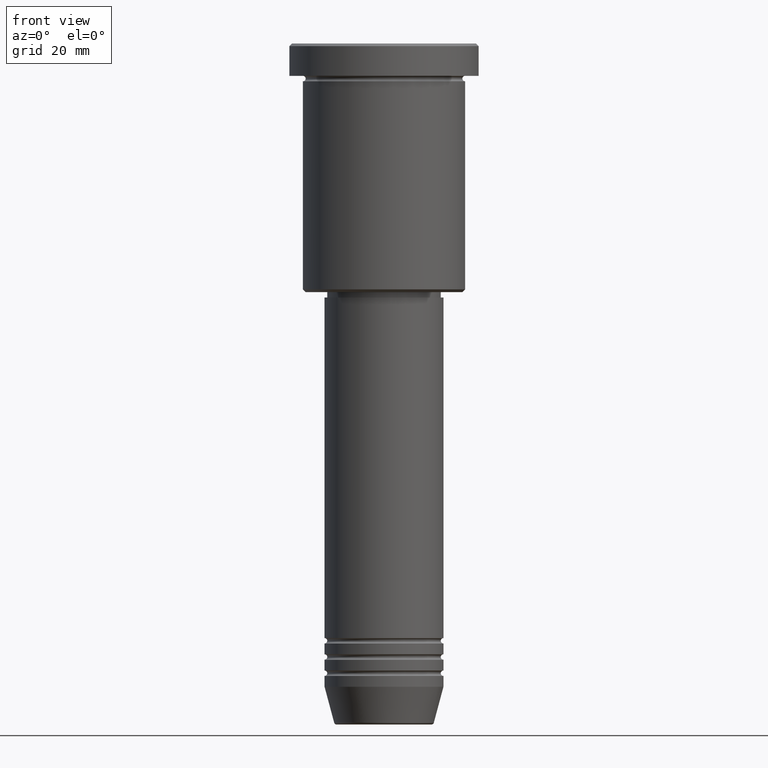
[diagram: clean part render]
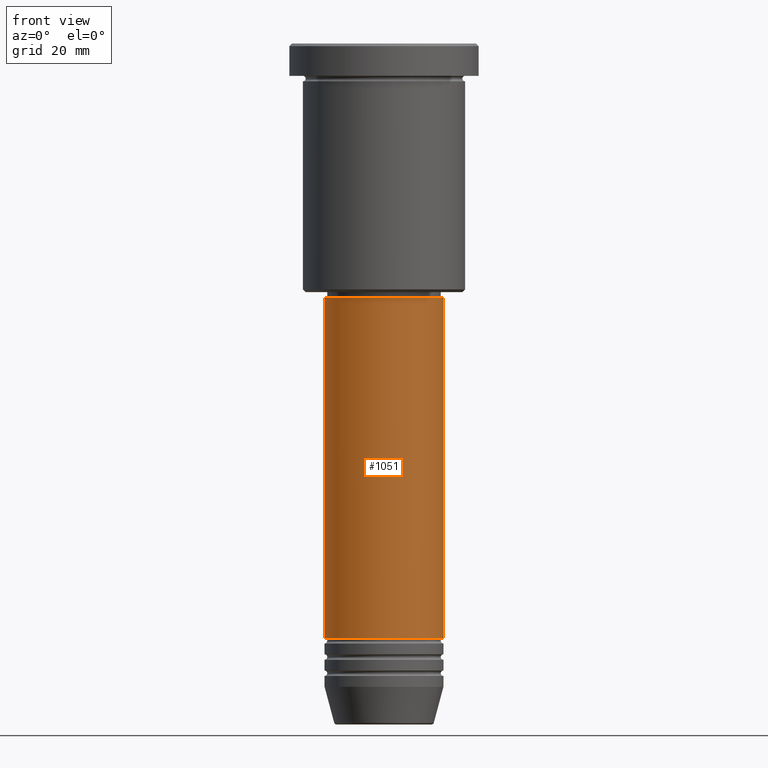
[diagram: same view with one face highlighted and labeled with its STEP entity id]
A machine part, front view. The second image highlights one B-rep face of the part: STEP entity #1051.
In plain terms, the highlighted cylindrical surface (partial cylindrical patch) has radius 11 mm, axis along (-0, -0, 1).
Its self-contained STEP definition (entity closure, byte-faithful):
#28 = EDGE_CURVE ( 'NONE', #798, #249, #611, .T. ) ;
#52 = DIRECTION ( 'NONE',  ( -0.000000000000000000, -0.000000000000000000, 1.000000000000000000 ) ) ;
#72 = CYLINDRICAL_SURFACE ( 'NONE', #571, 11.00000000000000000 ) ;
#90 = DIRECTION ( 'NONE',  ( 1.000000000000000000, 0.000000000000000000, 0.000000000000000000 ) ) ;
#92 = DIRECTION ( 'NONE',  ( 1.000000000000000000, 0.000000000000000000, 0.000000000000000000 ) ) ;
#94 = DIRECTION ( 'NONE',  ( -0.000000000000000000, -0.000000000000000000, 1.000000000000000000 ) ) ;
#154 = EDGE_CURVE ( 'NONE', #265, #960, #267, .T. ) ;
#186 = CARTESIAN_POINT ( 'NONE',  ( 0.000000000000000000, 0.000000000000000000, -46.99999999999999289 ) ) ;
#187 = CARTESIAN_POINT ( 'NONE',  ( 0.000000000000000000, 0.000000000000000000, -109.9999999999999574 ) ) ;
#213 = EDGE_CURVE ( 'NONE', #960, #249, #587, .T. ) ;
#249 = VERTEX_POINT ( 'NONE', #491 ) ;
#265 = VERTEX_POINT ( 'NONE', #859 ) ;
#267 = LINE ( 'NONE', #1073, #946 ) ;
#301 = CIRCLE ( 'NONE', #321, 11.00000000000000000 ) ;
#321 = AXIS2_PLACEMENT_3D ( 'NONE', #187, #831, #90 ) ;
#382 = ORIENTED_EDGE ( 'NONE', *, *, #154, .F. ) ;
#389 = ORIENTED_EDGE ( 'NONE', *, *, #1077, .T. ) ;
#488 = AXIS2_PLACEMENT_3D ( 'NONE', #186, #644, #92 ) ;
#491 = CARTESIAN_POINT ( 'NONE',  ( 11.00000000000000000, 0.000000000000000000, -46.99999999999999289 ) ) ;
#511 = CARTESIAN_POINT ( 'NONE',  ( 11.00000000000000000, 0.000000000000000000, 0.000000000000000000 ) ) ;
#551 = ORIENTED_EDGE ( 'NONE', *, *, #28, .T. ) ;
#571 = AXIS2_PLACEMENT_3D ( 'NONE', #986, #94, #998 ) ;
#587 = CIRCLE ( 'NONE', #488, 11.00000000000000000 ) ;
#611 = LINE ( 'NONE', #511, #729 ) ;
#644 = DIRECTION ( 'NONE',  ( -0.000000000000000000, -0.000000000000000000, 1.000000000000000000 ) ) ;
#729 = VECTOR ( 'NONE', #52, 1000.000000000000000 ) ;
#746 = FACE_OUTER_BOUND ( 'NONE', #861, .T. ) ;
#798 = VERTEX_POINT ( 'NONE', #1132 ) ;
#831 = DIRECTION ( 'NONE',  ( -0.000000000000000000, -0.000000000000000000, 1.000000000000000000 ) ) ;
#859 = CARTESIAN_POINT ( 'NONE',  ( -11.00000000000000000, 1.347111479062088405E-15, -109.9999999999999574 ) ) ;
#861 = EDGE_LOOP ( 'NONE', ( #382, #389, #551, #927 ) ) ;
#900 = DIRECTION ( 'NONE',  ( -0.000000000000000000, -0.000000000000000000, 1.000000000000000000 ) ) ;
#927 = ORIENTED_EDGE ( 'NONE', *, *, #213, .F. ) ;
#946 = VECTOR ( 'NONE', #900, 1000.000000000000000 ) ;
#957 = CARTESIAN_POINT ( 'NONE',  ( -11.00000000000000000, 1.347111479062088405E-15, -46.99999999999999289 ) ) ;
#960 = VERTEX_POINT ( 'NONE', #957 ) ;
#986 = CARTESIAN_POINT ( 'NONE',  ( 0.000000000000000000, 0.000000000000000000, 0.000000000000000000 ) ) ;
#998 = DIRECTION ( 'NONE',  ( 1.000000000000000000, 0.000000000000000000, 0.000000000000000000 ) ) ;
#1051 = ADVANCED_FACE ( 'NONE', ( #746 ), #72, .T. ) ;
#1073 = CARTESIAN_POINT ( 'NONE',  ( -11.00000000000000000, 1.347111479062088405E-15, 0.000000000000000000 ) ) ;
#1077 = EDGE_CURVE ( 'NONE', #265, #798, #301, .T. ) ;
#1132 = CARTESIAN_POINT ( 'NONE',  ( 11.00000000000000000, 0.000000000000000000, -109.9999999999999574 ) ) ;